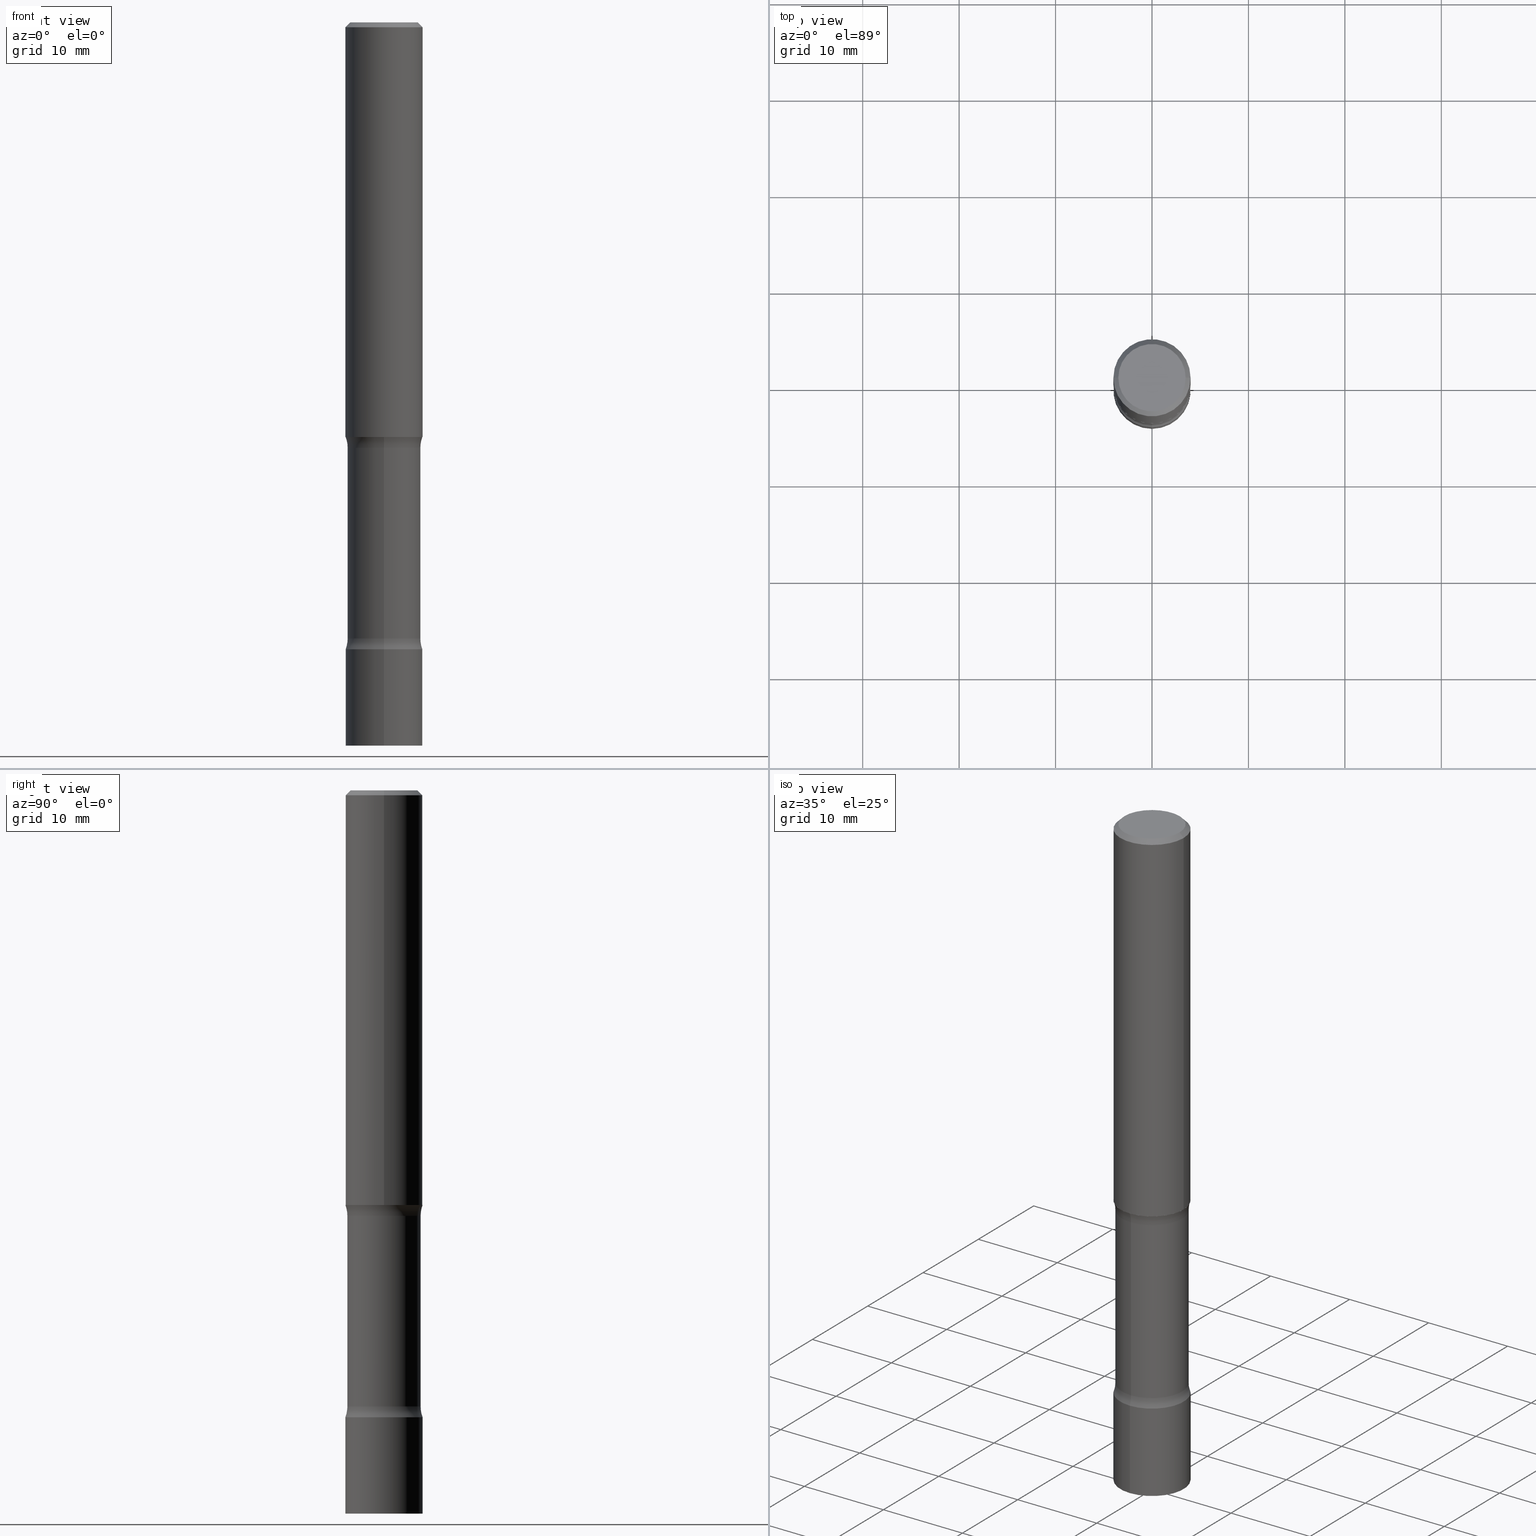
[diagram: canonical four-view strip — front | top / right | iso, engineering-drawing reading convention]
A machine part, canonical four-view strip (front | top / right | iso — engineering-drawing reading convention). The complete STEP part file that produces these views, byte-faithful:
ISO-10303-21;
HEADER;
FILE_DESCRIPTION (( 'STEP AP203' ),
    '1' );
FILE_NAME ('45107.STEP',
    '2024-03-11T13:42:06',
    ( '' ),
    ( '' ),
    'SwSTEP 2.0',
    'SolidWorks 2023',
    '' );
FILE_SCHEMA (( 'CONFIG_CONTROL_DESIGN' ));
ENDSEC;

DATA;
#1 = DIRECTION ( 'NONE',  ( 6.982962677686264344E-15, 1.000000000000000000, -3.654646145370266300E-15 ) ) ;
#2 = CARTESIAN_POINT ( 'NONE',  ( -1.053086442657868786E-15, -0.1495000000000089313, -2.515099999999999003 ) ) ;
#3 = ORIENTED_EDGE ( 'NONE', *, *, #62, .T. ) ;
#4 = PLANE ( 'NONE',  #40 ) ;
#5 = CARTESIAN_POINT ( 'NONE',  ( -0.1374999999999997058, 9.950721815702907580E-16, 4.268512490093574228E-18 ) ) ;
#6 = ORIENTED_EDGE ( 'NONE', *, *, #432, .F. ) ;
#7 = CIRCLE ( 'NONE', #158, 0.1250000000000000000 ) ;
#8 = ADVANCED_FACE ( 'NONE', ( #488 ), #262, .T. ) ;
#9 = APPLICATION_CONTEXT ( 'configuration controlled 3d designs of mechanical parts and assemblies' ) ;
#10 = CARTESIAN_POINT ( 'NONE',  ( 4.615443686831371050E-29, -5.538186780875625307E-15, -1.736999999999999433 ) ) ;
#11 = CARTESIAN_POINT ( 'NONE',  ( 6.174444085162321627E-29, -8.747276615403588570E-15, -2.515099999999999003 ) ) ;
#12 = ORIENTED_EDGE ( 'NONE', *, *, #102, .T. ) ;
#13 = LINE ( 'NONE', #216, #108 ) ;
#14 = ORIENTED_EDGE ( 'NONE', *, *, #317, .F. ) ;
#15 = ADVANCED_FACE ( 'NONE', ( #349 ), #304, .F. ) ;
#16 = ORIENTED_EDGE ( 'NONE', *, *, #503, .T. ) ;
#17 = AXIS2_PLACEMENT_3D ( 'NONE', #232, #28, #420 ) ;
#18 = AXIS2_PLACEMENT_3D ( 'NONE', #247, #477, #45 ) ;
#19 = EDGE_CURVE ( 'NONE', #321, #213, #107, .T. ) ;
#20 = EDGE_CURVE ( 'NONE', #240, #307, #444, .T. ) ;
#21 = ADVANCED_FACE ( 'NONE', ( #395 ), #113, .F. ) ;
#22 = DATE_AND_TIME ( #54, #466 ) ;
#23 = AXIS2_PLACEMENT_3D ( 'NONE', #264, #465, #388 ) ;
#24 = PERSON_AND_ORGANIZATION_ROLE ( 'classification_officer' ) ;
#25 = AXIS2_PLACEMENT_3D ( 'NONE', #112, #151, #426 ) ;
#26 = DIRECTION ( 'NONE',  ( -1.000000000000000000, 6.982962677686265922E-15, -4.883557194083112340E-29 ) ) ;
#27 = PERSON ( 'UNSPECIFIED', 'UNSPECIFIED', 'UNSPECIFIED', ('UNSPECIFIED'), ('UNSPECIFIED'), ('UNSPECIFIED') ) ;
#28 = DIRECTION ( 'NONE',  ( -2.445468806185136597E-29, 3.491481338843145583E-15, 1.000000000000000000 ) ) ;
#29 = VERTEX_POINT ( 'NONE', #267 ) ;
#30 = CARTESIAN_POINT ( 'NONE',  ( 0.1574999999999997236, -1.150358061425877303E-15, -0.02000000000000003511 ) ) ;
#31 = CARTESIAN_POINT ( 'NONE',  ( 0.000000000000000000, 0.000000000000000000, 0.000000000000000000 ) ) ;
#32 = ORIENTED_EDGE ( 'NONE', *, *, #303, .T. ) ;
#33 = LINE ( 'NONE', #501, #300 ) ;
#34 = ORIENTED_EDGE ( 'NONE', *, *, #226, .T. ) ;
#35 = ADVANCED_FACE ( 'NONE', ( #386 ), #230, .T. ) ;
#36 = ADVANCED_FACE ( 'NONE', ( #459 ), #493, .T. ) ;
#37 = DIRECTION ( 'NONE',  ( 1.998890425235319808E-29, -4.131006998026227215E-15, -1.000000000000000000 ) ) ;
#38 = DIRECTION ( 'NONE',  ( 6.860497997771530774E-15, 1.000000000000000000, 0.000000000000000000 ) ) ;
#39 = FACE_OUTER_BOUND ( 'NONE', #311, .T. ) ;
#40 = AXIS2_PLACEMENT_3D ( 'NONE', #402, #164, #404 ) ;
#41 = CARTESIAN_POINT ( 'NONE',  ( -1.099816621735586494E-15, -0.1574999999999999456, 5.498613975020886768E-16 ) ) ;
#42 = DIRECTION ( 'NONE',  ( 2.445676802554542085E-29, -3.491183476203738463E-15, -1.000000000000000000 ) ) ;
#43 = ORIENTED_EDGE ( 'NONE', *, *, #20, .T. ) ;
#44 = APPROVAL_ROLE ( '' ) ;
#45 = DIRECTION ( 'NONE',  ( 6.982962677686265922E-15, 1.000000000000000000, -4.131006998026227215E-15 ) ) ;
#46 = ORIENTED_EDGE ( 'NONE', *, *, #89, .F. ) ;
#47 = DIRECTION ( 'NONE',  ( 1.000000000000000000, -6.860497997771530774E-15, 4.832966949109230879E-29 ) ) ;
#48 = EDGE_LOOP ( 'NONE', ( #287, #61, #369, #34 ) ) ;
#49 = LOCAL_TIME ( 9, 42, 6.000000000000000000, #60 ) ;
#50 = DIRECTION ( 'NONE',  ( 6.982962677686264344E-15, 1.000000000000000000, -3.654646145370266300E-15 ) ) ;
#51 = EDGE_LOOP ( 'NONE', ( #182, #198 ) ) ;
#52 = ORIENTED_EDGE ( 'NONE', *, *, #58, .F. ) ;
#53 = EDGE_CURVE ( 'NONE', #135, #457, #241, .T. ) ;
#54 = CALENDAR_DATE ( 2024, 11, 3 ) ;
#55 = AXIS2_PLACEMENT_3D ( 'NONE', #31, #234, #194 ) ;
#56 = CIRCLE ( 'NONE', #126, 0.1494999999999994111 ) ;
#57 = DIRECTION ( 'NONE',  ( -2.445676802554542366E-29, 3.491183476203738463E-15, 1.000000000000000000 ) ) ;
#58 = EDGE_CURVE ( 'NONE', #373, #240, #507, .T. ) ;
#59 = CALENDAR_DATE ( 2024, 11, 3 ) ;
#60 = COORDINATED_UNIVERSAL_TIME_OFFSET ( 5, 0, .BEHIND. ) ;
#61 = ORIENTED_EDGE ( 'NONE', *, *, #351, .F. ) ;
#62 = EDGE_CURVE ( 'NONE', #449, #321, #312, .T. ) ;
#63 = AXIS2_PLACEMENT_3D ( 'NONE', #471, #121, #439 ) ;
#64 = DIRECTION ( 'NONE',  ( -1.000000000000000000, 6.982962677686266711E-15, 0.000000000000000000 ) ) ;
#65 = DIRECTION ( 'NONE',  ( 1.998890425235319808E-29, -4.131006998026227215E-15, -1.000000000000000000 ) ) ;
#66 = CC_DESIGN_PERSON_AND_ORGANIZATION_ASSIGNMENT ( #296, #184, ( #407 ) ) ;
#67 = EDGE_CURVE ( 'NONE', #365, #215, #293, .T. ) ;
#68 = DIRECTION ( 'NONE',  ( 1.998890425235319808E-29, -4.131006998026227215E-15, -1.000000000000000000 ) ) ;
#69 = EDGE_CURVE ( 'NONE', #334, #29, #88, .T. ) ;
#70 = LINE ( 'NONE', #30, #313 ) ;
#71 = CARTESIAN_POINT ( 'NONE',  ( 6.258731505417325033E-29, -8.934287633952984269E-15, -2.559099999999999042 ) ) ;
#72 = VECTOR ( 'NONE', #159, 39.37007874015748143 ) ;
#73 = CIRCLE ( 'NONE', #225, 0.1494999999999994111 ) ;
#74 = DIRECTION ( 'NONE',  ( -2.445676802554542366E-29, 3.491183476203738463E-15, 1.000000000000000000 ) ) ;
#75 = ADVANCED_FACE ( 'NONE', ( #495 ), #306, .T. ) ;
#76 = DIRECTION ( 'NONE',  ( 1.000000000000000000, -6.860497997771530774E-15, 4.832966949109230879E-29 ) ) ;
#77 = ORIENTED_EDGE ( 'NONE', *, *, #274, .T. ) ;
#78 = CARTESIAN_POINT ( 'NONE',  ( 4.140178688871434900E-29, -5.911077906661444587E-15, -1.692999999999999616 ) ) ;
#79 = DIRECTION ( 'NONE',  ( 6.982962677686265922E-15, 1.000000000000000000, -3.469013325287954477E-15 ) ) ;
#80 = AXIS2_PLACEMENT_3D ( 'NONE', #195, #191, #427 ) ;
#81 = DIRECTION ( 'NONE',  ( -2.445468806185136597E-29, 3.491481338843145583E-15, 1.000000000000000000 ) ) ;
#82 = DIRECTION ( 'NONE',  ( -2.445676802554542646E-29, 3.491183476203738463E-15, 1.000000000000000000 ) ) ;
#83 = ORIENTED_EDGE ( 'NONE', *, *, #504, .F. ) ;
#84 = DIRECTION ( 'NONE',  ( 6.860497997771530774E-15, 1.000000000000000000, 0.000000000000000000 ) ) ;
#85 = ORIENTED_EDGE ( 'NONE', *, *, #53, .T. ) ;
#86 = CARTESIAN_POINT ( 'NONE',  ( -0.1574999999999999456, -1.871348957896993972E-15, -1.692999999999999616 ) ) ;
#87 = CARTESIAN_POINT ( 'NONE',  ( 4.140178688871434900E-29, -5.911077906661444587E-15, -1.692999999999999616 ) ) ;
#88 = CIRCLE ( 'NONE', #80, 0.1574999999999997236 ) ;
#89 = EDGE_CURVE ( 'NONE', #431, #462, #145, .T. ) ;
#90 = EDGE_LOOP ( 'NONE', ( #496, #297, #46, #6 ) ) ;
#91 = CIRCLE ( 'NONE', #219, 0.1574999999999993905 ) ;
#92 = APPLICATION_PROTOCOL_DEFINITION ( 'international standard', 'config_control_design', 1994, #295 ) ;
#93 = ORIENTED_EDGE ( 'NONE', *, *, #385, .T. ) ;
#94 = EDGE_CURVE ( 'NONE', #215, #29, #33, .T. ) ;
#95 =( CONVERSION_BASED_UNIT ( 'INCH', #298 ) LENGTH_UNIT ( ) NAMED_UNIT ( #502 ) );
#96 = ORIENTED_EDGE ( 'NONE', *, *, #418, .T. ) ;
#97 = PERSON_AND_ORGANIZATION ( #27, #508 ) ;
#98 = ORIENTED_EDGE ( 'NONE', *, *, #500, .F. ) ;
#99 = CIRCLE ( 'NONE', #389, 0.1495000000000001605 ) ;
#100 = AXIS2_PLACEMENT_3D ( 'NONE', #169, #42, #280 ) ;
#101 = DATE_TIME_ROLE ( 'creation_date' ) ;
#102 = EDGE_CURVE ( 'NONE', #449, #454, #435, .T. ) ;
#103 = ORIENTED_EDGE ( 'NONE', *, *, #278, .F. ) ;
#104 = CARTESIAN_POINT ( 'NONE',  ( 4.629307167960973982E-29, -5.518333486837690173E-15, -1.736999999999999433 ) ) ;
#105 = DIRECTION ( 'NONE',  ( 6.982962677686265133E-15, 1.000000000000000000, -3.654646145370257623E-15 ) ) ;
#106 = EDGE_CURVE ( 'NONE', #213, #454, #99, .T. ) ;
#107 = CIRCLE ( 'NONE', #337, 0.1249999999999999306 ) ;
#108 = VECTOR ( 'NONE', #302, 39.37007874015748143 ) ;
#109 = DIRECTION ( 'NONE',  ( -2.445676802554542366E-29, 3.491183476203738463E-15, 1.000000000000000000 ) ) ;
#110 = LINE ( 'NONE', #229, #458 ) ;
#111 = DIRECTION ( 'NONE',  ( -6.982962677686265922E-15, -1.000000000000000000, 3.491183476203738857E-15 ) ) ;
#112 = CARTESIAN_POINT ( 'NONE',  ( 7.221594462583051654E-29, -1.030876656853439613E-14, -2.952799999999999869 ) ) ;
#113 = PLANE ( 'NONE',  #224 ) ;
#114 = ORIENTED_EDGE ( 'NONE', *, *, #272, .F. ) ;
#115 = DIRECTION ( 'NONE',  ( 1.998890425235319808E-29, -4.131006998026227215E-15, -1.000000000000000000 ) ) ;
#116 = LOCAL_TIME ( 9, 42, 6.000000000000000000, #140 ) ;
#117 = DIRECTION ( 'NONE',  ( -2.445676802554542366E-29, 3.491183476203738463E-15, 1.000000000000000000 ) ) ;
#118 = DIRECTION ( 'NONE',  ( -1.000000000000000000, 6.982962677686266711E-15, 0.000000000000000000 ) ) ;
#119 = CARTESIAN_POINT ( 'NONE',  ( 9.601573681818595033E-16, 0.1374999999999997058, -4.779444278458812147E-16 ) ) ;
#120 = EDGE_CURVE ( 'NONE', #480, #462, #228, .T. ) ;
#121 = DIRECTION ( 'NONE',  ( 1.998890425235319808E-29, -4.131006998026227215E-15, -1.000000000000000000 ) ) ;
#122 = FACE_OUTER_BOUND ( 'NONE', #347, .T. ) ;
#123 = CYLINDRICAL_SURFACE ( 'NONE', #301, 0.1494999999999997720 ) ;
#124 = AXIS2_PLACEMENT_3D ( 'NONE', #11, #173, #291 ) ;
#125 = DIRECTION ( 'NONE',  ( 1.998890425235319808E-29, -4.131006998026227215E-15, -1.000000000000000000 ) ) ;
#126 = AXIS2_PLACEMENT_3D ( 'NONE', #10, #172, #50 ) ;
#127 = EDGE_LOOP ( 'NONE', ( #249, #171, #270, #196 ) ) ;
#128 = APPROVAL_STATUS ( 'not_yet_approved' ) ;
#129 = PLANE ( 'NONE',  #263 ) ;
#130 = DIRECTION ( 'NONE',  ( -2.445468806185136597E-29, 3.491481338843145583E-15, 1.000000000000000000 ) ) ;
#131 = ORIENTED_EDGE ( 'NONE', *, *, #504, .T. ) ;
#132 = CARTESIAN_POINT ( 'NONE',  ( 7.045694665832473199E-29, -1.056066508907591234E-14, -2.952799999999999869 ) ) ;
#133 = ORIENTED_EDGE ( 'NONE', *, *, #58, .T. ) ;
#134 = AXIS2_PLACEMENT_3D ( 'NONE', #119, #463, #235 ) ;
#135 = VERTEX_POINT ( 'NONE', #316 ) ;
#136 = VECTOR ( 'NONE', #387, 39.37007874015748143 ) ;
#137 = PERSON_AND_ORGANIZATION_ROLE ( 'design_owner' ) ;
#138 = ORIENTED_EDGE ( 'NONE', *, *, #278, .T. ) ;
#139 = UNCERTAINTY_MEASURE_WITH_UNIT (LENGTH_MEASURE( 1.000000000000000082E-05 ), #95, 'distance_accuracy_value', 'NONE');
#140 = COORDINATED_UNIVERSAL_TIME_OFFSET ( 5, 0, .BEHIND. ) ;
#141 = APPROVAL_STATUS ( 'not_yet_approved' ) ;
#142 = CIRCLE ( 'NONE', #63, 0.1495000000000001605 ) ;
#143 = LINE ( 'NONE', #423, #136 ) ;
#144 = DIRECTION ( 'NONE',  ( -1.000000000000000000, 6.982962677686265922E-15, -4.883557194083112340E-29 ) ) ;
#145 = CIRCLE ( 'NONE', #282, 0.1574999999999999456 ) ;
#146 = AXIS2_PLACEMENT_3D ( 'NONE', #472, #130, #175 ) ;
#147 = DIRECTION ( 'NONE',  ( -6.982962677686265922E-15, -1.000000000000000000, 3.491183476203738857E-15 ) ) ;
#148 = CC_DESIGN_PERSON_AND_ORGANIZATION_ASSIGNMENT ( #214, #299, ( #350 ) ) ;
#149 = EDGE_LOOP ( 'NONE', ( #464, #14 ) ) ;
#150 = APPROVAL_PERSON_ORGANIZATION ( #283, #414, #44 ) ;
#151 = DIRECTION ( 'NONE',  ( -2.445676802554542366E-29, 3.491183476203738463E-15, 1.000000000000000000 ) ) ;
#152 = DIRECTION ( 'NONE',  ( 6.982962677686265922E-15, 1.000000000000000000, -3.469013325287954477E-15 ) ) ;
#153 = PRODUCT ( '45107', '45107', '', ( #180 ) ) ;
#154 = DIRECTION ( 'NONE',  ( 6.982962677686265922E-15, 1.000000000000000000, -4.131006998026227215E-15 ) ) ;
#155 = CARTESIAN_POINT ( 'NONE',  ( 1.916823255024941475E-15, 0.2744999999999912510, -2.515100000000000335 ) ) ;
#156 = AXIS2_PLACEMENT_3D ( 'NONE', #71, #68, #152 ) ;
#157 = CARTESIAN_POINT ( 'NONE',  ( -1.099816621735514116E-15, -0.1575000000000102707, -2.952799999999998981 ) ) ;
#158 = AXIS2_PLACEMENT_3D ( 'NONE', #314, #47, #84 ) ;
#159 = DIRECTION ( 'NONE',  ( -2.445676802554542646E-29, 3.491183476203738463E-15, 1.000000000000000000 ) ) ;
#160 = MANIFOLD_SOLID_BREP ( 'Body-Move/Copy2[1]', #185 ) ;
#161 = CC_DESIGN_APPROVAL ( #414, ( #392 ) ) ;
#162 = DIRECTION ( 'NONE',  ( 1.998890425235319808E-29, -4.131006998026227215E-15, -1.000000000000000000 ) ) ;
#163 = CARTESIAN_POINT ( 'NONE',  ( 4.629307167960973982E-29, -5.518333486837690173E-15, -1.736999999999999433 ) ) ;
#164 = DIRECTION ( 'NONE',  ( 2.445676802554542085E-29, -3.491183476203738463E-15, -1.000000000000000000 ) ) ;
#165 = FACE_OUTER_BOUND ( 'NONE', #48, .T. ) ;
#166 = MANIFOLD_SOLID_BREP ( 'Body-Move/Copy2[2]', #397 ) ;
#167 = EDGE_LOOP ( 'NONE', ( #437, #12, #96, #203 ) ) ;
#168 = DIRECTION ( 'NONE',  ( -2.438088387897960049E-29, 3.491481338843145188E-15, 1.000000000000000000 ) ) ;
#169 = CARTESIAN_POINT ( 'NONE',  ( 6.258199221908379461E-29, -8.935049894233490609E-15, -2.559099999999999042 ) ) ;
#170 = CIRCLE ( 'NONE', #146, 0.1574999999999997236 ) ;
#171 = ORIENTED_EDGE ( 'NONE', *, *, #207, .F. ) ;
#172 = DIRECTION ( 'NONE',  ( 1.998890425235319808E-29, -4.131006998026227215E-15, -1.000000000000000000 ) ) ;
#173 = DIRECTION ( 'NONE',  ( 1.998890425235319808E-29, -4.131006998026227215E-15, -1.000000000000000000 ) ) ;
#174 = ORIENTED_EDGE ( 'NONE', *, *, #317, .T. ) ;
#175 = DIRECTION ( 'NONE',  ( 1.000000000000000000, -6.982962677686266711E-15, 0.000000000000000000 ) ) ;
#176 = EDGE_LOOP ( 'NONE', ( #98, #281, #174, #52 ) ) ;
#177 = PERSON_AND_ORGANIZATION ( #27, #508 ) ;
#178 = CIRCLE ( 'NONE', #494, 0.1574999999999999456 ) ;
#179 = ORIENTED_EDGE ( 'NONE', *, *, #231, .T. ) ;
#180 = MECHANICAL_CONTEXT ( 'NONE', #9, 'mechanical' ) ;
#181 = CC_DESIGN_PERSON_AND_ORGANIZATION_ASSIGNMENT ( #372, #24, ( #392 ) ) ;
#182 = ORIENTED_EDGE ( 'NONE', *, *, #315, .F. ) ;
#183 =( NAMED_UNIT ( * ) PLANE_ANGLE_UNIT ( ) SI_UNIT ( $, .RADIAN. ) );
#184 = PERSON_AND_ORGANIZATION_ROLE ( 'creator' ) ;
#185 = CLOSED_SHELL ( 'NONE', ( #35, #36, #222, #456 ) ) ;
#186 = APPROVAL_PERSON_ORGANIZATION ( #380, #469, #374 ) ;
#187 = COORDINATED_UNIVERSAL_TIME_OFFSET ( 5, 0, .BEHIND. ) ;
#188 = ADVANCED_FACE ( 'NONE', ( #248 ), #356, .F. ) ;
#189 = FACE_OUTER_BOUND ( 'NONE', #325, .T. ) ;
#190 = CARTESIAN_POINT ( 'NONE',  ( 6.258199221908379461E-29, -8.935049894233490609E-15, -2.559099999999999042 ) ) ;
#191 = DIRECTION ( 'NONE',  ( -2.445468806185136597E-29, 3.491481338843145583E-15, 1.000000000000000000 ) ) ;
#192 = AXIS2_PLACEMENT_3D ( 'NONE', #87, #81, #330 ) ;
#193 = DIRECTION ( 'NONE',  ( 0.7071067811865472397, -7.319954787623254468E-15, -0.7071067811865477948 ) ) ;
#194 = DIRECTION ( 'NONE',  ( 1.000000000000000000, -6.982962677686265922E-15, 4.876176775795935793E-29 ) ) ;
#195 = CARTESIAN_POINT ( 'NONE',  ( 4.890937612370281041E-31, -6.982962677686302702E-17, -0.02000000000000003511 ) ) ;
#196 = ORIENTED_EDGE ( 'NONE', *, *, #106, .T. ) ;
#197 = CARTESIAN_POINT ( 'NONE',  ( 6.170780326706973757E-29, -8.752523326039832143E-15, -2.515099999999999447 ) ) ;
#198 = ORIENTED_EDGE ( 'NONE', *, *, #503, .F. ) ;
#199 = CARTESIAN_POINT ( 'NONE',  ( 4.890937612370281041E-31, -6.982962677686302702E-17, -0.02000000000000003511 ) ) ;
#200 = CALENDAR_DATE ( 2024, 11, 3 ) ;
#201 = DIRECTION ( 'NONE',  ( 6.982962677686265922E-15, 1.000000000000000000, -4.131006998026227215E-15 ) ) ;
#202 = PLANE ( 'NONE',  #100 ) ;
#203 = ORIENTED_EDGE ( 'NONE', *, *, #19, .F. ) ;
#204 = DIRECTION ( 'NONE',  ( 2.445468806185136597E-29, -3.491481338843145583E-15, -1.000000000000000000 ) ) ;
#205 = DIRECTION ( 'NONE',  ( 6.982962677686265922E-15, 1.000000000000000000, -4.131006998026227215E-15 ) ) ;
#206 = ADVANCED_FACE ( 'NONE', ( #364 ), #366, .F. ) ;
#207 = EDGE_CURVE ( 'NONE', #321, #449, #413, .T. ) ;
#208 = VERTEX_POINT ( 'NONE', #400 ) ;
#209 = CARTESIAN_POINT ( 'NONE',  ( 1.119104808822229587E-15, 0.1574999999999910083, -2.559099999999999486 ) ) ;
#210 = CIRCLE ( 'NONE', #305, 0.1374999999999997058 ) ;
#211 = ORIENTED_EDGE ( 'NONE', *, *, #226, .F. ) ;
#212 = SECURITY_CLASSIFICATION_LEVEL ( 'unclassified' ) ;
#213 = VERTEX_POINT ( 'NONE', #320 ) ;
#214 = PERSON_AND_ORGANIZATION ( #27, #508 ) ;
#215 = VERTEX_POINT ( 'NONE', #5 ) ;
#216 = CARTESIAN_POINT ( 'NONE',  ( 0.1574999999999998346, -1.099816621735585705E-15, 7.679978421878591026E-30 ) ) ;
#217 = ADVANCED_BREP_SHAPE_REPRESENTATION ( '45107', ( #160, #166, #491, #323 ), #271 ) ;
#218 = AXIS2_PLACEMENT_3D ( 'NONE', #430, #76, #38 ) ;
#219 = AXIS2_PLACEMENT_3D ( 'NONE', #353, #285, #279 ) ;
#220 = LOCAL_TIME ( 9, 42, 6.000000000000000000, #187 ) ;
#221 = DATE_AND_TIME ( #378, #116 ) ;
#222 = ADVANCED_FACE ( 'NONE', ( #122 ), #202, .F. ) ;
#223 = CARTESIAN_POINT ( 'NONE',  ( 7.045694665832473199E-29, -1.056066508907591234E-14, -2.952799999999999869 ) ) ;
#224 = AXIS2_PLACEMENT_3D ( 'NONE', #190, #470, #343 ) ;
#225 = AXIS2_PLACEMENT_3D ( 'NONE', #433, #408, #1 ) ;
#226 = EDGE_CURVE ( 'NONE', #29, #334, #170, .T. ) ;
#227 = DIRECTION ( 'NONE',  ( 1.000000000000000000, -6.982962677686265922E-15, 4.876176775795935793E-29 ) ) ;
#228 = LINE ( 'NONE', #506, #72 ) ;
#229 = CARTESIAN_POINT ( 'NONE',  ( -0.1574999999999998346, 1.119104808822156617E-15, -7.747322767151467176E-30 ) ) ;
#230 = CYLINDRICAL_SURFACE ( 'NONE', #355, 0.1574999999999999456 ) ;
#231 = EDGE_CURVE ( 'NONE', #457, #135, #383, .T. ) ;
#232 = CARTESIAN_POINT ( 'NONE',  ( -1.043851414335219820E-46, 1.490343170380447200E-32, 4.268512490100411279E-18 ) ) ;
#233 = AXIS2_PLACEMENT_3D ( 'NONE', #368, #125, #79 ) ;
#234 = DIRECTION ( 'NONE',  ( -2.445468806185136597E-29, 3.491481338843145583E-15, 1.000000000000000000 ) ) ;
#235 = DIRECTION ( 'NONE',  ( -1.000000000000000000, 6.982962677686265922E-15, -4.876176775795935793E-29 ) ) ;
#236 = CC_DESIGN_DATE_AND_TIME_ASSIGNMENT ( #221, #101, ( #350 ) ) ;
#237 = EDGE_LOOP ( 'NONE', ( #244, #179, #131, #211 ) ) ;
#238 = EDGE_CURVE ( 'NONE', #462, #431, #178, .T. ) ;
#239 = FACE_OUTER_BOUND ( 'NONE', #447, .T. ) ;
#240 = VERTEX_POINT ( 'NONE', #396 ) ;
#241 = CIRCLE ( 'NONE', #428, 0.1574999999999999456 ) ;
#242 = AXIS2_PLACEMENT_3D ( 'NONE', #78, #168, #441 ) ;
#243 = CARTESIAN_POINT ( 'NONE',  ( 0.1374999999999997058, -1.046838268059730519E-15, 4.268512490107428597E-18 ) ) ;
#244 = ORIENTED_EDGE ( 'NONE', *, *, #274, .F. ) ;
#245 = DIRECTION ( 'NONE',  ( 1.998890425235319528E-29, -4.131006998026227215E-15, -1.000000000000000000 ) ) ;
#246 = ORIENTED_EDGE ( 'NONE', *, *, #351, .T. ) ;
#247 = CARTESIAN_POINT ( 'NONE',  ( 6.174444085162321627E-29, -8.747276615403588570E-15, -2.515099999999999003 ) ) ;
#248 = FACE_OUTER_BOUND ( 'NONE', #176, .T. ) ;
#249 = ORIENTED_EDGE ( 'NONE', *, *, #102, .F. ) ;
#250 = FACE_OUTER_BOUND ( 'NONE', #51, .T. ) ;
#251 = CLOSED_SHELL ( 'NONE', ( #390, #206, #188, #261, #438, #21, #360, #8 ) ) ;
#252 = AXIS2_PLACEMENT_3D ( 'NONE', #308, #460, #227 ) ;
#253 = ORIENTED_EDGE ( 'NONE', *, *, #106, .F. ) ;
#254 = DATE_AND_TIME ( #259, #49 ) ;
#255 = ORIENTED_EDGE ( 'NONE', *, *, #418, .F. ) ;
#256 =( NAMED_UNIT ( * ) SI_UNIT ( $, .STERADIAN. ) SOLID_ANGLE_UNIT ( ) );
#257 = APPROVAL_STATUS ( 'not_yet_approved' ) ;
#258 = AXIS2_PLACEMENT_3D ( 'NONE', #352, #144, #499 ) ;
#259 = CALENDAR_DATE ( 2024, 11, 3 ) ;
#260 = ADVANCED_FACE ( 'NONE', ( #165 ), #481, .T. ) ;
#261 = ADVANCED_FACE ( 'NONE', ( #189 ), #419, .F. ) ;
#262 = CYLINDRICAL_SURFACE ( 'NONE', #322, 0.1494999999999997720 ) ;
#263 = AXIS2_PLACEMENT_3D ( 'NONE', #475, #245, #201 ) ;
#264 = CARTESIAN_POINT ( 'NONE',  ( 4.527492508121017531E-29, -5.356422472962470814E-15, -1.692999999999999616 ) ) ;
#265 = CC_DESIGN_PERSON_AND_ORGANIZATION_ASSIGNMENT ( #448, #335, ( #407 ) ) ;
#266 = DIRECTION ( 'NONE',  ( -2.445468806185136877E-29, 3.491481338843145188E-15, 1.000000000000000000 ) ) ;
#267 = CARTESIAN_POINT ( 'NONE',  ( -0.1574999999999997236, 1.029986994958722013E-15, -0.02000000000000003511 ) ) ;
#268 = ADVANCED_FACE ( 'NONE', ( #342 ), #348, .T. ) ;
#269 = CARTESIAN_POINT ( 'NONE',  ( 6.258731505417325033E-29, -8.934287633952984269E-15, -2.559099999999999042 ) ) ;
#270 = ORIENTED_EDGE ( 'NONE', *, *, #19, .T. ) ;
#271 =( GEOMETRIC_REPRESENTATION_CONTEXT ( 3 ) GLOBAL_UNCERTAINTY_ASSIGNED_CONTEXT ( ( #139 ) ) GLOBAL_UNIT_ASSIGNED_CONTEXT ( ( #95, #183, #256 ) ) REPRESENTATION_CONTEXT ( 'NONE', 'WORKASPACE' ) );
#272 = EDGE_CURVE ( 'NONE', #208, #454, #492, .T. ) ;
#273 = DIRECTION ( 'NONE',  ( -0.7071067811865472397, 2.468850131082253905E-15, -0.7071067811865477948 ) ) ;
#274 = EDGE_CURVE ( 'NONE', #457, #29, #110, .T. ) ;
#275 = LOCAL_TIME ( 9, 42, 6.000000000000000000, #371 ) ;
#276 = PLANE ( 'NONE',  #242 ) ;
#277 = DIRECTION ( 'NONE',  ( 1.998890425235319808E-29, -4.131006998026227215E-15, -1.000000000000000000 ) ) ;
#278 = EDGE_CURVE ( 'NONE', #373, #213, #143, .T. ) ;
#279 = DIRECTION ( 'NONE',  ( 6.982962677686265133E-15, 1.000000000000000000, -3.469013325287966704E-15 ) ) ;
#280 = DIRECTION ( 'NONE',  ( 6.982962677686265922E-15, 1.000000000000000000, -3.491183476203738463E-15 ) ) ;
#281 = ORIENTED_EDGE ( 'NONE', *, *, #327, .T. ) ;
#282 = AXIS2_PLACEMENT_3D ( 'NONE', #269, #74, #393 ) ;
#283 = PERSON_AND_ORGANIZATION ( #27, #508 ) ;
#284 = CONICAL_SURFACE ( 'NONE', #446, 0.1574999999999997236, 0.7853981633974479459 ) ;
#285 = DIRECTION ( 'NONE',  ( 1.998890425235319808E-29, -4.131006998026227215E-15, -1.000000000000000000 ) ) ;
#286 = CARTESIAN_POINT ( 'NONE',  ( 4.890937612370281041E-31, -6.982962677686302702E-17, -0.02000000000000003511 ) ) ;
#287 = ORIENTED_EDGE ( 'NONE', *, *, #303, .F. ) ;
#288 = LINE ( 'NONE', #41, #487 ) ;
#289 = ORIENTED_EDGE ( 'NONE', *, *, #53, .F. ) ;
#290 = FACE_OUTER_BOUND ( 'NONE', #149, .T. ) ;
#291 = DIRECTION ( 'NONE',  ( 6.982962677686265922E-15, 1.000000000000000000, -4.131006998026227215E-15 ) ) ;
#292 = ORIENTED_EDGE ( 'NONE', *, *, #238, .T. ) ;
#293 = CIRCLE ( 'NONE', #17, 0.1374999999999997058 ) ;
#294 = ORIENTED_EDGE ( 'NONE', *, *, #500, .T. ) ;
#295 = APPLICATION_CONTEXT ( 'configuration controlled 3d designs of mechanical parts and assemblies' ) ;
#296 = PERSON_AND_ORGANIZATION ( #27, #508 ) ;
#297 = ORIENTED_EDGE ( 'NONE', *, *, #120, .T. ) ;
#298 = LENGTH_MEASURE_WITH_UNIT ( LENGTH_MEASURE( 0.02539999999999999897 ), #336 );
#299 = PERSON_AND_ORGANIZATION_ROLE ( 'creator' ) ;
#300 = VECTOR ( 'NONE', #273, 39.37007874015748143 ) ;
#301 = AXIS2_PLACEMENT_3D ( 'NONE', #132, #162, #318 ) ;
#302 = DIRECTION ( 'NONE',  ( -2.445468806185136877E-29, 3.491481338843145188E-15, 1.000000000000000000 ) ) ;
#303 = EDGE_CURVE ( 'NONE', #365, #334, #70, .T. ) ;
#304 = PLANE ( 'NONE',  #134 ) ;
#305 = AXIS2_PLACEMENT_3D ( 'NONE', #468, #324, #319 ) ;
#306 = CYLINDRICAL_SURFACE ( 'NONE', #55, 0.1574999999999998346 ) ;
#307 = VERTEX_POINT ( 'NONE', #498 ) ;
#308 = CARTESIAN_POINT ( 'NONE',  ( 0.000000000000000000, 0.000000000000000000, 0.000000000000000000 ) ) ;
#309 = DIRECTION ( 'NONE',  ( 1.000000000000000000, -6.982962677686270655E-15, 0.000000000000000000 ) ) ;
#310 = CARTESIAN_POINT ( 'NONE',  ( 4.140178688871434900E-29, -5.911077906661444587E-15, -1.692999999999999616 ) ) ;
#311 = EDGE_LOOP ( 'NONE', ( #289, #440 ) ) ;
#312 = CIRCLE ( 'NONE', #156, 0.1574999999999999456 ) ;
#313 = VECTOR ( 'NONE', #193, 39.37007874015748143 ) ;
#314 = CARTESIAN_POINT ( 'NONE',  ( -1.883206700388234630E-15, -0.2745000000000049067, -1.736999999999998545 ) ) ;
#315 = EDGE_CURVE ( 'NONE', #362, #480, #429, .T. ) ;
#316 = CARTESIAN_POINT ( 'NONE',  ( 0.1574999999999999456, -7.010894528397031278E-15, -1.692999999999999616 ) ) ;
#317 = EDGE_CURVE ( 'NONE', #307, #240, #91, .T. ) ;
#318 = DIRECTION ( 'NONE',  ( 6.982962677686265133E-15, 1.000000000000000000, -3.654646145370257623E-15 ) ) ;
#319 = DIRECTION ( 'NONE',  ( 1.000000000000000000, -6.982962677686265922E-15, 4.876173381029110692E-29 ) ) ;
#320 = CARTESIAN_POINT ( 'NONE',  ( 1.043952920314159714E-15, 0.1494999999999913898, -2.515100000000000335 ) ) ;
#321 = VERTEX_POINT ( 'NONE', #436 ) ;
#322 = AXIS2_PLACEMENT_3D ( 'NONE', #223, #384, #105 ) ;
#323 = AXIS2_PLACEMENT_3D ( 'NONE', #451, #411, #416 ) ;
#324 = DIRECTION ( 'NONE',  ( -2.445468806185136597E-29, 3.491481338843145583E-15, 1.000000000000000000 ) ) ;
#325 = EDGE_LOOP ( 'NONE', ( #450, #401, #133, #43 ) ) ;
#326 = CARTESIAN_POINT ( 'NONE',  ( 0.1574999999999997236, -1.150358061425877303E-15, -0.02000000000000003511 ) ) ;
#327 = EDGE_CURVE ( 'NONE', #208, #307, #7, .T. ) ;
#328 = ORIENTED_EDGE ( 'NONE', *, *, #69, .F. ) ;
#329 = CC_DESIGN_PERSON_AND_ORGANIZATION_ASSIGNMENT ( #97, #137, ( #153 ) ) ;
#330 = DIRECTION ( 'NONE',  ( 1.000000000000000000, -6.982962677686270655E-15, 0.000000000000000000 ) ) ;
#331 = EDGE_LOOP ( 'NONE', ( #93, #403, #253, #103 ) ) ;
#332 = COORDINATED_UNIVERSAL_TIME_OFFSET ( 5, 0, .BEHIND. ) ;
#333 = TOROIDAL_SURFACE ( 'NONE', #18, 0.2745000000000000218, 0.1249999999999999306 ) ;
#334 = VERTEX_POINT ( 'NONE', #326 ) ;
#335 = PERSON_AND_ORGANIZATION_ROLE ( 'design_supplier' ) ;
#336 =( LENGTH_UNIT ( ) NAMED_UNIT ( * ) SI_UNIT ( $, .METRE. ) );
#337 = AXIS2_PLACEMENT_3D ( 'NONE', #155, #26, #461 ) ;
#338 = CC_DESIGN_APPROVAL ( #379, ( #350 ) ) ;
#339 = ORIENTED_EDGE ( 'NONE', *, *, #69, .T. ) ;
#340 = EDGE_LOOP ( 'NONE', ( #375, #16, #483, #485 ) ) ;
#341 = DATE_AND_TIME ( #59, #275 ) ;
#342 = FACE_OUTER_BOUND ( 'NONE', #473, .T. ) ;
#343 = DIRECTION ( 'NONE',  ( -6.982962677686265922E-15, -1.000000000000000000, 4.131006998026227215E-15 ) ) ;
#344 = CARTESIAN_POINT ( 'NONE',  ( 0.000000000000000000, 0.000000000000000000, 0.000000000000000000 ) ) ;
#345 = AXIS2_PLACEMENT_3D ( 'NONE', #163, #277, #205 ) ;
#346 = CIRCLE ( 'NONE', #377, 0.1574999999999999456 ) ;
#347 = EDGE_LOOP ( 'NONE', ( #405, #292 ) ) ;
#348 = CYLINDRICAL_SURFACE ( 'NONE', #252, 0.1574999999999998346 ) ;
#349 = FACE_OUTER_BOUND ( 'NONE', #412, .T. ) ;
#350 = PRODUCT_DEFINITION ( 'UNKNOWN', '', #407, #406 ) ;
#351 = EDGE_CURVE ( 'NONE', #215, #365, #210, .T. ) ;
#352 = CARTESIAN_POINT ( 'NONE',  ( 1.916823255024922148E-15, 0.2744999999999938600, -1.737000000000000544 ) ) ;
#353 = CARTESIAN_POINT ( 'NONE',  ( 4.527492508121017531E-29, -5.356422472962470814E-15, -1.692999999999999616 ) ) ;
#354 = DIRECTION ( 'NONE',  ( 6.982962677686266711E-15, 1.000000000000000000, -3.654646145370248156E-15 ) ) ;
#355 = AXIS2_PLACEMENT_3D ( 'NONE', #422, #117, #147 ) ;
#356 = TOROIDAL_SURFACE ( 'NONE', #345, 0.2744999999999994111, 0.1250000000000000000 ) ;
#357 = DIRECTION ( 'NONE',  ( -6.982962677686265922E-15, -1.000000000000000000, 3.469013325287954477E-15 ) ) ;
#358 = DATE_TIME_ROLE ( 'classification_date' ) ;
#359 = CARTESIAN_POINT ( 'NONE',  ( -1.080528434648953657E-15, -0.1575000000000089384, -2.559099999999998598 ) ) ;
#360 = ADVANCED_FACE ( 'NONE', ( #505 ), #333, .F. ) ;
#361 = CARTESIAN_POINT ( 'NONE',  ( 6.258731505417325033E-29, -8.934287633952984269E-15, -2.559099999999999042 ) ) ;
#362 = VERTEX_POINT ( 'NONE', #157 ) ;
#363 = CARTESIAN_POINT ( 'NONE',  ( 1.043952920314138612E-15, 0.1494999999999938878, -1.737000000000000099 ) ) ;
#364 = FACE_OUTER_BOUND ( 'NONE', #167, .T. ) ;
#365 = VERTEX_POINT ( 'NONE', #243 ) ;
#366 = TOROIDAL_SURFACE ( 'NONE', #124, 0.2745000000000000218, 0.1249999999999999306 ) ;
#367 = CARTESIAN_POINT ( 'NONE',  ( 1.119104808822224657E-15, 0.1574999999999896483, -2.952800000000000313 ) ) ;
#368 = CARTESIAN_POINT ( 'NONE',  ( 6.258731505417325033E-29, -8.934287633952984269E-15, -2.559099999999999042 ) ) ;
#369 = ORIENTED_EDGE ( 'NONE', *, *, #94, .T. ) ;
#370 = ADVANCED_FACE ( 'NONE', ( #239 ), #284, .T. ) ;
#371 = COORDINATED_UNIVERSAL_TIME_OFFSET ( 5, 0, .BEHIND. ) ;
#372 = PERSON_AND_ORGANIZATION ( #27, #508 ) ;
#373 = VERTEX_POINT ( 'NONE', #363 ) ;
#374 = APPROVAL_ROLE ( '' ) ;
#375 = ORIENTED_EDGE ( 'NONE', *, *, #120, .F. ) ;
#376 = APPROVAL_DATE_TIME ( #254, #379 ) ;
#377 = AXIS2_PLACEMENT_3D ( 'NONE', #479, #57, #415 ) ;
#378 = CALENDAR_DATE ( 2024, 11, 3 ) ;
#379 = APPROVAL ( #141, 'UNSPECIFIED' ) ;
#380 = PERSON_AND_ORGANIZATION ( #27, #508 ) ;
#381 = ADVANCED_FACE ( 'NONE', ( #39 ), #276, .F. ) ;
#382 = APPROVAL_DATE_TIME ( #341, #414 ) ;
#383 = CIRCLE ( 'NONE', #192, 0.1574999999999999456 ) ;
#384 = DIRECTION ( 'NONE',  ( 1.998890425235319808E-29, -4.131006998026227215E-15, -1.000000000000000000 ) ) ;
#385 = EDGE_CURVE ( 'NONE', #373, #208, #73, .T. ) ;
#386 = FACE_OUTER_BOUND ( 'NONE', #90, .T. ) ;
#387 = DIRECTION ( 'NONE',  ( 1.998890425235319808E-29, -4.131006998026227215E-15, -1.000000000000000000 ) ) ;
#388 = DIRECTION ( 'NONE',  ( 6.982962677686265133E-15, 1.000000000000000000, -3.469013325287966704E-15 ) ) ;
#389 = AXIS2_PLACEMENT_3D ( 'NONE', #197, #65, #354 ) ;
#390 = ADVANCED_FACE ( 'NONE', ( #434 ), #123, .T. ) ;
#391 = VECTOR ( 'NONE', #115, 39.37007874015748143 ) ;
#392 = SECURITY_CLASSIFICATION ( '', '', #212 ) ;
#393 = DIRECTION ( 'NONE',  ( -6.982962677686265922E-15, -1.000000000000000000, 3.469013325287954477E-15 ) ) ;
#394 = DIRECTION ( 'NONE',  ( 2.445468806185136597E-29, -3.491481338843145583E-15, -1.000000000000000000 ) ) ;
#395 = FACE_OUTER_BOUND ( 'NONE', #478, .T. ) ;
#396 = CARTESIAN_POINT ( 'NONE',  ( 1.099816621735627909E-15, 0.1574999999999940059, -1.693000000000000282 ) ) ;
#397 = CLOSED_SHELL ( 'NONE', ( #268, #370, #260, #15, #381, #75 ) ) ;
#398 = AXIS2_PLACEMENT_3D ( 'NONE', #104, #37, #154 ) ;
#399 = CARTESIAN_POINT ( 'NONE',  ( -1.099816621735523977E-15, -0.1575000000000089106, -2.559099999999998598 ) ) ;
#400 = CARTESIAN_POINT ( 'NONE',  ( -1.053086442657879830E-15, -0.1495000000000049623, -1.736999999999998989 ) ) ;
#401 = ORIENTED_EDGE ( 'NONE', *, *, #385, .F. ) ;
#402 = CARTESIAN_POINT ( 'NONE',  ( 7.220980290903470182E-29, -1.030964609733603853E-14, -2.952799999999999869 ) ) ;
#403 = ORIENTED_EDGE ( 'NONE', *, *, #272, .T. ) ;
#404 = DIRECTION ( 'NONE',  ( 6.982962677686265922E-15, 1.000000000000000000, -3.491183476203738463E-15 ) ) ;
#405 = ORIENTED_EDGE ( 'NONE', *, *, #89, .T. ) ;
#406 = DESIGN_CONTEXT ( 'detailed design', #295, 'design' ) ;
#407 = PRODUCT_DEFINITION_FORMATION_WITH_SPECIFIED_SOURCE ( 'ANY', '', #153, .NOT_KNOWN. ) ;
#408 = DIRECTION ( 'NONE',  ( 1.998890425235319808E-29, -4.131006998026227215E-15, -1.000000000000000000 ) ) ;
#409 = DIRECTION ( 'NONE',  ( -2.445676802554542366E-29, 3.491183476203738463E-15, 1.000000000000000000 ) ) ;
#410 = ORIENTED_EDGE ( 'NONE', *, *, #94, .F. ) ;
#411 = DIRECTION ( 'NONE',  ( 0.000000000000000000, 0.000000000000000000, 1.000000000000000000 ) ) ;
#412 = EDGE_LOOP ( 'NONE', ( #246, #455 ) ) ;
#413 = CIRCLE ( 'NONE', #233, 0.1574999999999999456 ) ;
#414 = APPROVAL ( #128, 'UNSPECIFIED' ) ;
#415 = DIRECTION ( 'NONE',  ( -6.982962677686265922E-15, -1.000000000000000000, 3.469013325287954477E-15 ) ) ;
#416 = DIRECTION ( 'NONE',  ( 1.000000000000000000, 0.000000000000000000, 0.000000000000000000 ) ) ;
#417 = APPROVAL_ROLE ( '' ) ;
#418 = EDGE_CURVE ( 'NONE', #454, #213, #142, .T. ) ;
#419 = TOROIDAL_SURFACE ( 'NONE', #398, 0.2744999999999994111, 0.1250000000000000000 ) ;
#420 = DIRECTION ( 'NONE',  ( 1.000000000000000000, -6.982962677686265922E-15, 4.876173381029110692E-29 ) ) ;
#421 = PRODUCT_RELATED_PRODUCT_CATEGORY ( 'detail', '', ( #153 ) ) ;
#422 = CARTESIAN_POINT ( 'NONE',  ( 0.000000000000000000, 0.000000000000000000, 0.000000000000000000 ) ) ;
#423 = CARTESIAN_POINT ( 'NONE',  ( 1.043952920314165630E-15, 0.1494999999999891971, -2.952800000000000313 ) ) ;
#424 = DIRECTION ( 'NONE',  ( -2.445468806185136597E-29, 3.491481338843145583E-15, 1.000000000000000000 ) ) ;
#425 = ORIENTED_EDGE ( 'NONE', *, *, #67, .F. ) ;
#426 = DIRECTION ( 'NONE',  ( -6.982962677686265922E-15, -1.000000000000000000, 3.469013325287954477E-15 ) ) ;
#427 = DIRECTION ( 'NONE',  ( 1.000000000000000000, -6.982962677686266711E-15, 0.000000000000000000 ) ) ;
#428 = AXIS2_PLACEMENT_3D ( 'NONE', #310, #424, #309 ) ;
#429 = CIRCLE ( 'NONE', #25, 0.1574999999999999456 ) ;
#430 = CARTESIAN_POINT ( 'NONE',  ( -1.883206700388223586E-15, -0.2745000000000087370, -2.515099999999998115 ) ) ;
#431 = VERTEX_POINT ( 'NONE', #399 ) ;
#432 = EDGE_CURVE ( 'NONE', #362, #431, #288, .T. ) ;
#433 = CARTESIAN_POINT ( 'NONE',  ( 4.615443686831371050E-29, -5.538186780875625307E-15, -1.736999999999999433 ) ) ;
#434 = FACE_OUTER_BOUND ( 'NONE', #331, .T. ) ;
#435 = CIRCLE ( 'NONE', #218, 0.1249999999999999306 ) ;
#436 = CARTESIAN_POINT ( 'NONE',  ( 1.099816621735649406E-15, 0.1574999999999910361, -2.559099999999999486 ) ) ;
#437 = ORIENTED_EDGE ( 'NONE', *, *, #62, .F. ) ;
#438 = ADVANCED_FACE ( 'NONE', ( #290 ), #129, .F. ) ;
#439 = DIRECTION ( 'NONE',  ( 6.982962677686266711E-15, 1.000000000000000000, -3.654646145370248156E-15 ) ) ;
#440 = ORIENTED_EDGE ( 'NONE', *, *, #231, .F. ) ;
#441 = DIRECTION ( 'NONE',  ( 1.000000000000000000, -6.982962677686265922E-15, 4.876176775795935793E-29 ) ) ;
#442 = CC_DESIGN_SECURITY_CLASSIFICATION ( #392, ( #407 ) ) ;
#443 = ORIENTED_EDGE ( 'NONE', *, *, #207, .T. ) ;
#444 = CIRCLE ( 'NONE', #23, 0.1574999999999993905 ) ;
#445 = DATE_AND_TIME ( #200, #220 ) ;
#446 = AXIS2_PLACEMENT_3D ( 'NONE', #199, #204, #118 ) ;
#447 = EDGE_LOOP ( 'NONE', ( #425, #32, #339, #410 ) ) ;
#448 = PERSON_AND_ORGANIZATION ( #27, #508 ) ;
#449 = VERTEX_POINT ( 'NONE', #359 ) ;
#450 = ORIENTED_EDGE ( 'NONE', *, *, #327, .F. ) ;
#451 = CARTESIAN_POINT ( 'NONE',  ( 0.000000000000000000, 0.000000000000000000, 0.000000000000000000 ) ) ;
#452 = AXIS2_PLACEMENT_3D ( 'NONE', #344, #109, #111 ) ;
#453 = APPROVAL_PERSON_ORGANIZATION ( #177, #379, #417 ) ;
#454 = VERTEX_POINT ( 'NONE', #2 ) ;
#455 = ORIENTED_EDGE ( 'NONE', *, *, #67, .T. ) ;
#456 = ADVANCED_FACE ( 'NONE', ( #250 ), #4, .T. ) ;
#457 = VERTEX_POINT ( 'NONE', #86 ) ;
#458 = VECTOR ( 'NONE', #266, 39.37007874015748143 ) ;
#459 = FACE_OUTER_BOUND ( 'NONE', #340, .T. ) ;
#460 = DIRECTION ( 'NONE',  ( -2.445468806185136597E-29, 3.491481338843145583E-15, 1.000000000000000000 ) ) ;
#461 = DIRECTION ( 'NONE',  ( -6.982962677686265922E-15, -1.000000000000000000, 0.000000000000000000 ) ) ;
#462 = VERTEX_POINT ( 'NONE', #209 ) ;
#463 = DIRECTION ( 'NONE',  ( 2.438088387897960049E-29, -3.491481338843145188E-15, -1.000000000000000000 ) ) ;
#464 = ORIENTED_EDGE ( 'NONE', *, *, #20, .F. ) ;
#465 = DIRECTION ( 'NONE',  ( 1.998890425235319808E-29, -4.131006998026227215E-15, -1.000000000000000000 ) ) ;
#466 = LOCAL_TIME ( 9, 42, 6.000000000000000000, #332 ) ;
#467 = PRODUCT_DEFINITION_SHAPE ( 'NONE', 'NONE',  #350 ) ;
#468 = CARTESIAN_POINT ( 'NONE',  ( -1.043851414335219820E-46, 1.490343170380447200E-32, 4.268512490100411279E-18 ) ) ;
#469 = APPROVAL ( #257, 'UNSPECIFIED' ) ;
#470 = DIRECTION ( 'NONE',  ( -1.998890425235319528E-29, 4.131006998026227215E-15, 1.000000000000000000 ) ) ;
#471 = CARTESIAN_POINT ( 'NONE',  ( 6.170780326706973757E-29, -8.752523326039832143E-15, -2.515099999999999447 ) ) ;
#472 = CARTESIAN_POINT ( 'NONE',  ( 4.890937612370281041E-31, -6.982962677686302702E-17, -0.02000000000000003511 ) ) ;
#473 = EDGE_LOOP ( 'NONE', ( #85, #77, #328, #83 ) ) ;
#474 = AXIS2_PLACEMENT_3D ( 'NONE', #286, #394, #64 ) ;
#475 = CARTESIAN_POINT ( 'NONE',  ( 4.140178688871434900E-29, -5.911077906661444587E-15, -1.692999999999999616 ) ) ;
#476 = EDGE_LOOP ( 'NONE', ( #114, #294, #138, #255 ) ) ;
#477 = DIRECTION ( 'NONE',  ( 1.998890425235319808E-29, -4.131006998026227215E-15, -1.000000000000000000 ) ) ;
#478 = EDGE_LOOP ( 'NONE', ( #443, #3 ) ) ;
#479 = CARTESIAN_POINT ( 'NONE',  ( 7.221594462583051654E-29, -1.030876656853439613E-14, -2.952799999999999869 ) ) ;
#480 = VERTEX_POINT ( 'NONE', #367 ) ;
#481 = CONICAL_SURFACE ( 'NONE', #474, 0.1574999999999997236, 0.7853981633974479459 ) ;
#482 = APPROVAL_DATE_TIME ( #22, #469 ) ;
#483 = ORIENTED_EDGE ( 'NONE', *, *, #432, .T. ) ;
#484 = SHAPE_DEFINITION_REPRESENTATION ( #467, #217 ) ;
#485 = ORIENTED_EDGE ( 'NONE', *, *, #238, .F. ) ;
#486 = APPLICATION_PROTOCOL_DEFINITION ( 'international standard', 'config_control_design', 1994, #9 ) ;
#487 = VECTOR ( 'NONE', #82, 39.37007874015748143 ) ;
#488 = FACE_OUTER_BOUND ( 'NONE', #476, .T. ) ;
#489 = CC_DESIGN_APPROVAL ( #469, ( #407 ) ) ;
#490 = CARTESIAN_POINT ( 'NONE',  ( -1.025644450666771688E-15, -0.1495000000000103468, -2.952799999999998981 ) ) ;
#491 = MANIFOLD_SOLID_BREP ( 'Body-Move/Copy2[4]', #251 ) ;
#492 = LINE ( 'NONE', #490, #391 ) ;
#493 = CYLINDRICAL_SURFACE ( 'NONE', #452, 0.1574999999999999456 ) ;
#494 = AXIS2_PLACEMENT_3D ( 'NONE', #361, #409, #357 ) ;
#495 = FACE_OUTER_BOUND ( 'NONE', #237, .T. ) ;
#496 = ORIENTED_EDGE ( 'NONE', *, *, #315, .T. ) ;
#497 = CC_DESIGN_DATE_AND_TIME_ASSIGNMENT ( #445, #358, ( #392 ) ) ;
#498 = CARTESIAN_POINT ( 'NONE',  ( -1.080528434648966081E-15, -0.1575000000000047196, -1.692999999999999172 ) ) ;
#499 = DIRECTION ( 'NONE',  ( -6.982962677686265922E-15, -1.000000000000000000, 0.000000000000000000 ) ) ;
#500 = EDGE_CURVE ( 'NONE', #208, #373, #56, .T. ) ;
#501 = CARTESIAN_POINT ( 'NONE',  ( -0.1574999999999997236, 1.029986994958722013E-15, -0.02000000000000003511 ) ) ;
#502 = DIMENSIONAL_EXPONENTS ( 1.000000000000000000, 0.000000000000000000, 0.000000000000000000, 0.000000000000000000, 0.000000000000000000, 0.000000000000000000, 0.000000000000000000 ) ;
#503 = EDGE_CURVE ( 'NONE', #480, #362, #346, .T. ) ;
#504 = EDGE_CURVE ( 'NONE', #135, #334, #13, .T. ) ;
#505 = FACE_OUTER_BOUND ( 'NONE', #127, .T. ) ;
#506 = CARTESIAN_POINT ( 'NONE',  ( 1.119104808822157209E-15, 0.1574999999999999456, -5.498613975020886768E-16 ) ) ;
#507 = CIRCLE ( 'NONE', #258, 0.1250000000000000000 ) ;
#508 = ORGANIZATION ( 'UNSPECIFIED', 'UNSPECIFIED', '' ) ;
ENDSEC;
END-ISO-10303-21;
